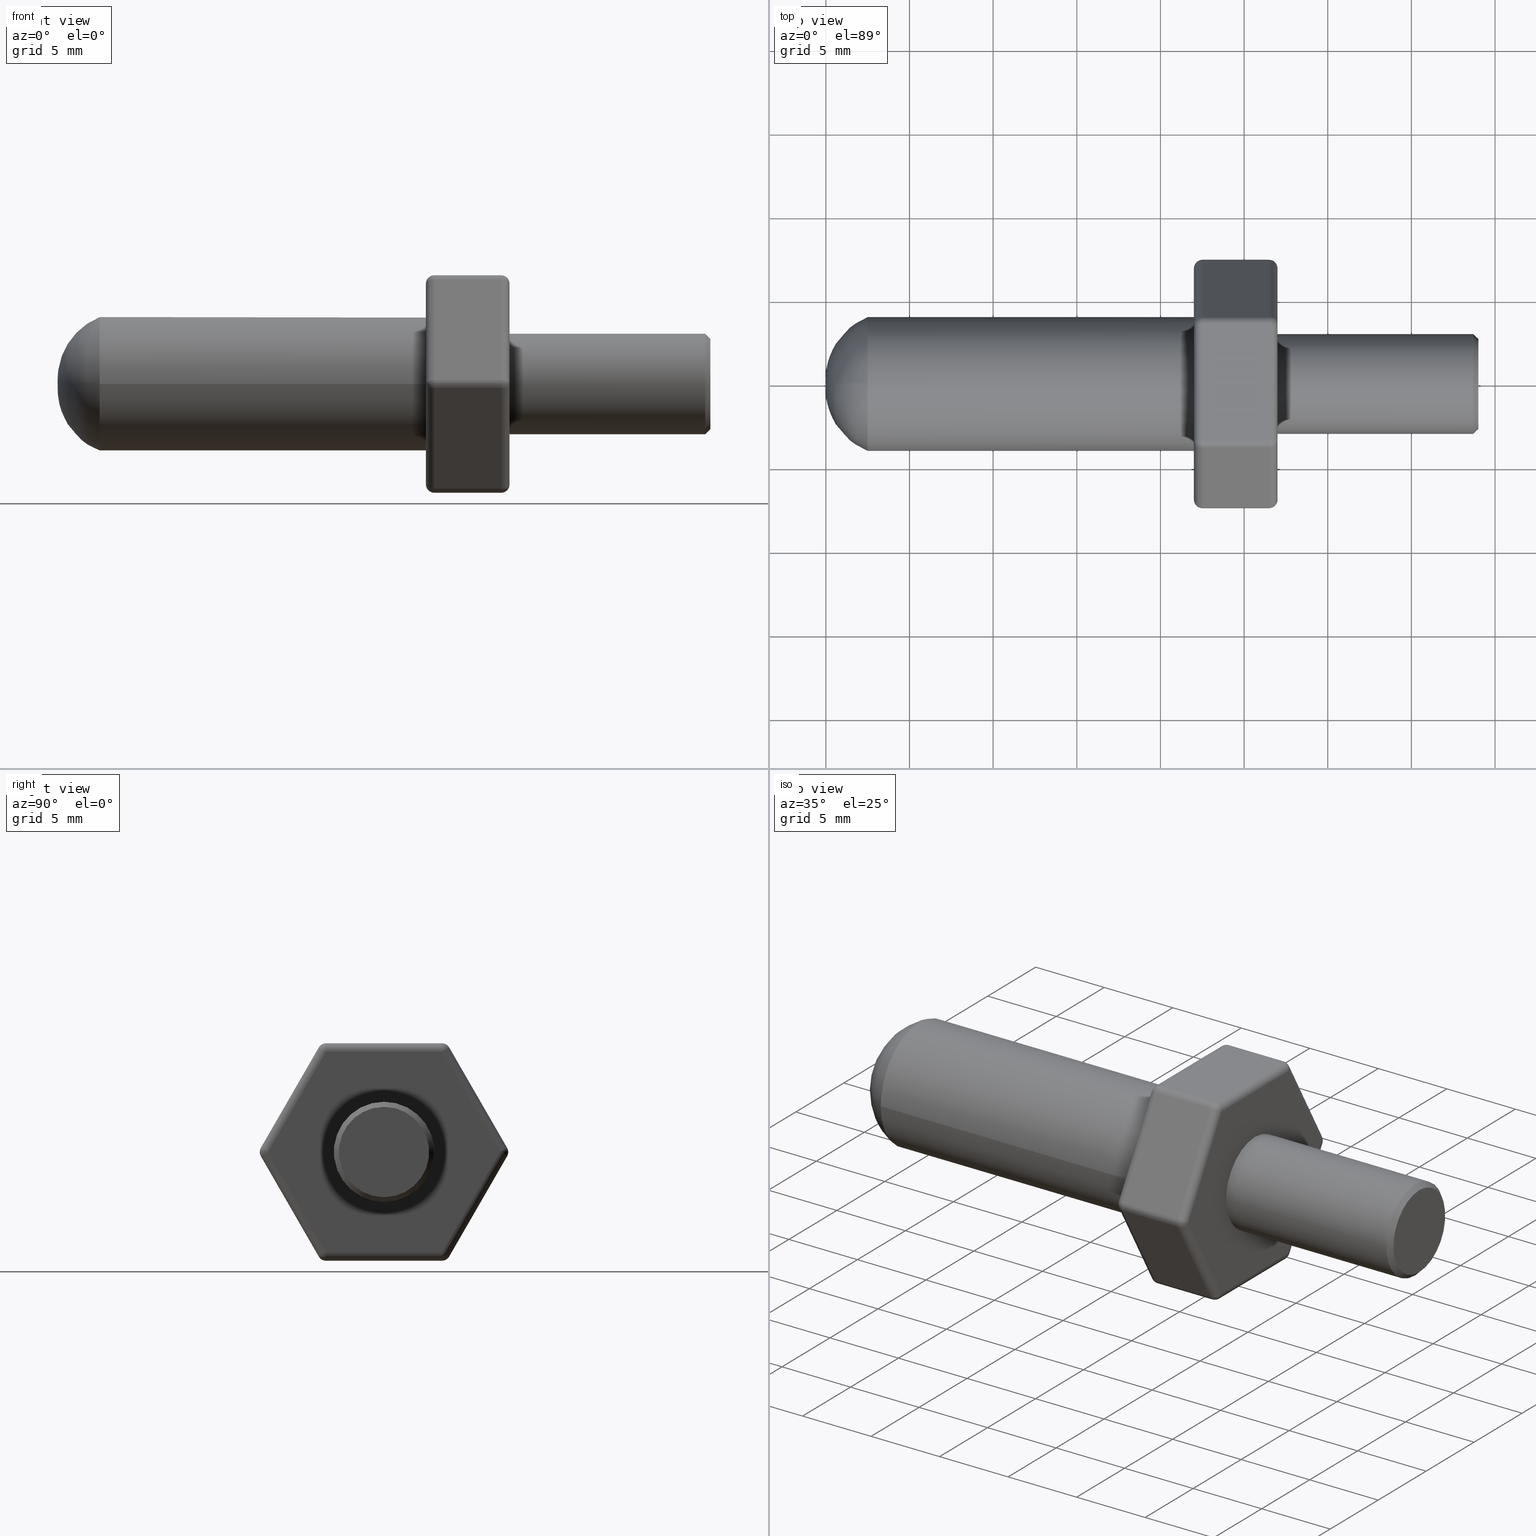
[diagram: canonical four-view strip — front | top / right | iso, engineering-drawing reading convention]
A machine part, canonical four-view strip (front | top / right | iso — engineering-drawing reading convention). The complete STEP part file that produces these views, byte-faithful:
ISO-10303-21;
HEADER;
/* Generated by software containing ST-Developer
 * from STEP Tools, Inc. (www.steptools.com) 
 */

FILE_DESCRIPTION(
/* description */ ('PERNO D7 X M6 BL.PINZ.ESAG.13X39/FE-ZINC'),
/* implementation_level */ '2;1');

FILE_NAME(
/* name */ 
'Q:\\Catalogo\\3_Profili e accessori MACAP\\Per Download Web e catalog
o artaceo\\ACCESSORI\\PAGINA 53\\DPEXX0000038-XT10501.stp',
/* time_stamp */ '2019-12-16T17:56:22+01:00',
/* author */ ('fzagni'),
/* organization */ (''),
/* preprocessor_version */ 'ST-DEVELOPER v17.2',
/* originating_system */ 'Autodesk Inventor 2019',
/* authorisation */ '');

FILE_SCHEMA (('AUTOMOTIVE_DESIGN { 1 0 10303 214 3 1 1 }'));
ENDSEC;

DATA;
#10=MECHANICAL_DESIGN_GEOMETRIC_PRESENTATION_REPRESENTATION('',(#13),#1135);
#11=SHAPE_REPRESENTATION_RELATIONSHIP('SRR','None',#1142,#12);
#12=ADVANCED_BREP_SHAPE_REPRESENTATION('',(#14),#1134);
#13=STYLED_ITEM('',(#1151),#14);
#14=MANIFOLD_SOLID_BREP('Solido1',#611);
#15=(
BOUNDED_SURFACE()
B_SPLINE_SURFACE(2,2,((#1103,#1104,#1105,#1106,#1107,#1108,#1109,#1110,
#1111),(#1112,#1113,#1114,#1115,#1116,#1117,#1118,#1119,#1120),(#1121,#1122,
#1123,#1124,#1125,#1126,#1127,#1128,#1129)),.UNSPECIFIED.,.F.,.T.,.F.)
B_SPLINE_SURFACE_WITH_KNOTS((3,3),(3,2,2,2,3),(-1.64279001901994,-0.381604003882723),
(-3.14159265358979,-1.5707963267949,0.,1.5707963267949,3.14159265358979),
 .UNSPECIFIED.)
GEOMETRIC_REPRESENTATION_ITEM()
RATIONAL_B_SPLINE_SURFACE(((1.,0.707106781186548,1.,0.707106781186548,1.,
0.707106781186548,1.,0.707106781186548,1.),(0.807677998957505,0.571114590078033,
0.807677998957505,0.571114590078033,0.807677998957505,0.571114590078033,
0.807677998957505,0.571114590078033,0.807677998957505),(1.,0.707106781186548,
1.,0.707106781186548,1.,0.707106781186548,1.,0.707106781186548,1.)))
REPRESENTATION_ITEM('')
SURFACE()
);
#16=CONICAL_SURFACE('',#708,2.85,0.785398163397445);
#17=FACE_BOUND('',#200,.T.);
#18=FACE_BOUND('',#208,.T.);
#19=PLANE('',#640);
#20=PLANE('',#653);
#21=PLANE('',#664);
#22=PLANE('',#675);
#23=PLANE('',#686);
#24=PLANE('',#696);
#25=PLANE('',#697);
#26=PLANE('',#705);
#27=PLANE('',#712);
#28=LINE('',#945,#67);
#29=LINE('',#946,#68);
#30=LINE('',#953,#69);
#31=LINE('',#955,#70);
#32=LINE('',#956,#71);
#33=LINE('',#959,#72);
#34=LINE('',#963,#73);
#35=LINE('',#966,#74);
#36=LINE('',#975,#75);
#37=LINE('',#976,#76);
#38=LINE('',#982,#77);
#39=LINE('',#985,#78);
#40=LINE('',#988,#79);
#41=LINE('',#997,#80);
#42=LINE('',#998,#81);
#43=LINE('',#1004,#82);
#44=LINE('',#1007,#83);
#45=LINE('',#1010,#84);
#46=LINE('',#1019,#85);
#47=LINE('',#1020,#86);
#48=LINE('',#1026,#87);
#49=LINE('',#1029,#88);
#50=LINE('',#1032,#89);
#51=LINE('',#1041,#90);
#52=LINE('',#1042,#91);
#53=LINE('',#1048,#92);
#54=LINE('',#1051,#93);
#55=LINE('',#1053,#94);
#56=LINE('',#1059,#95);
#57=LINE('',#1065,#96);
#58=LINE('',#1070,#97);
#59=LINE('',#1072,#98);
#60=LINE('',#1074,#99);
#61=LINE('',#1076,#100);
#62=LINE('',#1078,#101);
#63=LINE('',#1080,#102);
#64=LINE('',#1090,#103);
#65=LINE('',#1093,#104);
#66=LINE('',#1097,#105);
#67=VECTOR('',#732,10.);
#68=VECTOR('',#733,10.);
#69=VECTOR('',#742,10.);
#70=VECTOR('',#743,10.);
#71=VECTOR('',#744,10.);
#72=VECTOR('',#747,10.);
#73=VECTOR('',#752,10.);
#74=VECTOR('',#755,10.);
#75=VECTOR('',#766,10.);
#76=VECTOR('',#767,10.);
#77=VECTOR('',#776,10.);
#78=VECTOR('',#779,10.);
#79=VECTOR('',#782,10.);
#80=VECTOR('',#793,10.);
#81=VECTOR('',#794,10.);
#82=VECTOR('',#803,10.);
#83=VECTOR('',#806,10.);
#84=VECTOR('',#809,10.);
#85=VECTOR('',#820,10.);
#86=VECTOR('',#821,10.);
#87=VECTOR('',#830,10.);
#88=VECTOR('',#833,10.);
#89=VECTOR('',#836,10.);
#90=VECTOR('',#847,10.);
#91=VECTOR('',#848,10.);
#92=VECTOR('',#857,10.);
#93=VECTOR('',#860,10.);
#94=VECTOR('',#863,10.);
#95=VECTOR('',#872,10.);
#96=VECTOR('',#881,10.);
#97=VECTOR('',#888,10.);
#98=VECTOR('',#891,10.);
#99=VECTOR('',#894,10.);
#100=VECTOR('',#897,10.);
#101=VECTOR('',#900,10.);
#102=VECTOR('',#903,10.);
#103=VECTOR('',#914,2.85);
#104=VECTOR('',#919,3.);
#105=VECTOR('',#924,4.);
#106=CYLINDRICAL_SURFACE('',#635,0.5);
#107=CYLINDRICAL_SURFACE('',#641,0.5);
#108=CYLINDRICAL_SURFACE('',#643,0.5);
#109=CYLINDRICAL_SURFACE('',#648,0.5);
#110=CYLINDRICAL_SURFACE('',#654,0.5);
#111=CYLINDRICAL_SURFACE('',#659,0.5);
#112=CYLINDRICAL_SURFACE('',#665,0.5);
#113=CYLINDRICAL_SURFACE('',#670,0.5);
#114=CYLINDRICAL_SURFACE('',#676,0.5);
#115=CYLINDRICAL_SURFACE('',#681,0.5);
#116=CYLINDRICAL_SURFACE('',#687,0.5);
#117=CYLINDRICAL_SURFACE('',#691,0.5);
#118=CYLINDRICAL_SURFACE('',#699,0.5);
#119=CYLINDRICAL_SURFACE('',#700,0.5);
#120=CYLINDRICAL_SURFACE('',#701,0.5);
#121=CYLINDRICAL_SURFACE('',#702,0.5);
#122=CYLINDRICAL_SURFACE('',#703,0.5);
#123=CYLINDRICAL_SURFACE('',#704,0.5);
#124=CYLINDRICAL_SURFACE('',#711,3.);
#125=CYLINDRICAL_SURFACE('',#713,4.);
#126=FACE_OUTER_BOUND('',#169,.T.);
#127=FACE_OUTER_BOUND('',#170,.T.);
#128=FACE_OUTER_BOUND('',#171,.T.);
#129=FACE_OUTER_BOUND('',#172,.T.);
#130=FACE_OUTER_BOUND('',#173,.T.);
#131=FACE_OUTER_BOUND('',#174,.T.);
#132=FACE_OUTER_BOUND('',#175,.T.);
#133=FACE_OUTER_BOUND('',#176,.T.);
#134=FACE_OUTER_BOUND('',#177,.T.);
#135=FACE_OUTER_BOUND('',#178,.T.);
#136=FACE_OUTER_BOUND('',#179,.T.);
#137=FACE_OUTER_BOUND('',#180,.T.);
#138=FACE_OUTER_BOUND('',#181,.T.);
#139=FACE_OUTER_BOUND('',#182,.T.);
#140=FACE_OUTER_BOUND('',#183,.T.);
#141=FACE_OUTER_BOUND('',#184,.T.);
#142=FACE_OUTER_BOUND('',#185,.T.);
#143=FACE_OUTER_BOUND('',#186,.T.);
#144=FACE_OUTER_BOUND('',#187,.T.);
#145=FACE_OUTER_BOUND('',#188,.T.);
#146=FACE_OUTER_BOUND('',#189,.T.);
#147=FACE_OUTER_BOUND('',#190,.T.);
#148=FACE_OUTER_BOUND('',#191,.T.);
#149=FACE_OUTER_BOUND('',#192,.T.);
#150=FACE_OUTER_BOUND('',#193,.T.);
#151=FACE_OUTER_BOUND('',#194,.T.);
#152=FACE_OUTER_BOUND('',#195,.T.);
#153=FACE_OUTER_BOUND('',#196,.T.);
#154=FACE_OUTER_BOUND('',#197,.T.);
#155=FACE_OUTER_BOUND('',#198,.T.);
#156=FACE_OUTER_BOUND('',#199,.T.);
#157=FACE_OUTER_BOUND('',#201,.T.);
#158=FACE_OUTER_BOUND('',#202,.T.);
#159=FACE_OUTER_BOUND('',#203,.T.);
#160=FACE_OUTER_BOUND('',#204,.T.);
#161=FACE_OUTER_BOUND('',#205,.T.);
#162=FACE_OUTER_BOUND('',#206,.T.);
#163=FACE_OUTER_BOUND('',#207,.T.);
#164=FACE_OUTER_BOUND('',#209,.T.);
#165=FACE_OUTER_BOUND('',#210,.T.);
#166=FACE_OUTER_BOUND('',#211,.T.);
#167=FACE_OUTER_BOUND('',#212,.T.);
#168=FACE_OUTER_BOUND('',#213,.T.);
#169=EDGE_LOOP('',(#388,#389,#390));
#170=EDGE_LOOP('',(#391,#392,#393,#394));
#171=EDGE_LOOP('',(#395,#396,#397));
#172=EDGE_LOOP('',(#398,#399,#400,#401));
#173=EDGE_LOOP('',(#402,#403,#404,#405));
#174=EDGE_LOOP('',(#406,#407,#408,#409));
#175=EDGE_LOOP('',(#410,#411,#412));
#176=EDGE_LOOP('',(#413,#414,#415,#416));
#177=EDGE_LOOP('',(#417,#418,#419));
#178=EDGE_LOOP('',(#420,#421,#422,#423));
#179=EDGE_LOOP('',(#424,#425,#426,#427));
#180=EDGE_LOOP('',(#428,#429,#430));
#181=EDGE_LOOP('',(#431,#432,#433,#434));
#182=EDGE_LOOP('',(#435,#436,#437));
#183=EDGE_LOOP('',(#438,#439,#440,#441));
#184=EDGE_LOOP('',(#442,#443,#444,#445));
#185=EDGE_LOOP('',(#446,#447,#448));
#186=EDGE_LOOP('',(#449,#450,#451,#452));
#187=EDGE_LOOP('',(#453,#454,#455));
#188=EDGE_LOOP('',(#456,#457,#458,#459));
#189=EDGE_LOOP('',(#460,#461,#462,#463));
#190=EDGE_LOOP('',(#464,#465,#466));
#191=EDGE_LOOP('',(#467,#468,#469,#470));
#192=EDGE_LOOP('',(#471,#472,#473));
#193=EDGE_LOOP('',(#474,#475,#476,#477));
#194=EDGE_LOOP('',(#478,#479,#480,#481));
#195=EDGE_LOOP('',(#482,#483,#484));
#196=EDGE_LOOP('',(#485,#486,#487,#488));
#197=EDGE_LOOP('',(#489,#490,#491));
#198=EDGE_LOOP('',(#492,#493,#494,#495));
#199=EDGE_LOOP('',(#496,#497,#498,#499,#500,#501));
#200=EDGE_LOOP('',(#502));
#201=EDGE_LOOP('',(#503,#504,#505,#506));
#202=EDGE_LOOP('',(#507,#508,#509,#510));
#203=EDGE_LOOP('',(#511,#512,#513,#514));
#204=EDGE_LOOP('',(#515,#516,#517,#518));
#205=EDGE_LOOP('',(#519,#520,#521,#522));
#206=EDGE_LOOP('',(#523,#524,#525,#526));
#207=EDGE_LOOP('',(#527,#528,#529,#530,#531,#532));
#208=EDGE_LOOP('',(#533,#534));
#209=EDGE_LOOP('',(#535,#536,#537,#538));
#210=EDGE_LOOP('',(#539,#540,#541,#542));
#211=EDGE_LOOP('',(#543));
#212=EDGE_LOOP('',(#544,#545,#546,#547,#548,#549,#550));
#213=EDGE_LOOP('',(#551,#552,#553,#554,#555));
#214=CIRCLE('',#632,0.499999999999999);
#215=CIRCLE('',#633,0.5);
#216=CIRCLE('',#634,0.5);
#217=CIRCLE('',#636,0.5);
#218=CIRCLE('',#638,0.5);
#219=CIRCLE('',#639,0.5);
#220=CIRCLE('',#642,0.5);
#221=CIRCLE('',#644,0.5);
#222=CIRCLE('',#646,0.5);
#223=CIRCLE('',#647,0.5);
#224=CIRCLE('',#649,0.5);
#225=CIRCLE('',#651,0.5);
#226=CIRCLE('',#652,0.5);
#227=CIRCLE('',#655,0.5);
#228=CIRCLE('',#657,0.5);
#229=CIRCLE('',#658,0.5);
#230=CIRCLE('',#660,0.500000000000002);
#231=CIRCLE('',#662,0.5);
#232=CIRCLE('',#663,0.5);
#233=CIRCLE('',#666,0.499999999999999);
#234=CIRCLE('',#668,0.5);
#235=CIRCLE('',#669,0.5);
#236=CIRCLE('',#671,0.5);
#237=CIRCLE('',#673,0.499999999999999);
#238=CIRCLE('',#674,0.5);
#239=CIRCLE('',#677,0.5);
#240=CIRCLE('',#679,0.5);
#241=CIRCLE('',#680,0.5);
#242=CIRCLE('',#682,0.5);
#243=CIRCLE('',#684,0.5);
#244=CIRCLE('',#685,0.5);
#245=CIRCLE('',#688,0.5);
#246=CIRCLE('',#690,0.499999999999999);
#247=CIRCLE('',#692,0.500000000000002);
#248=CIRCLE('',#694,0.5);
#249=CIRCLE('',#695,0.5);
#250=CIRCLE('',#698,3.);
#251=CIRCLE('',#706,4.);
#252=CIRCLE('',#707,4.);
#253=CIRCLE('',#709,2.7);
#254=CIRCLE('',#710,3.);
#255=CIRCLE('',#714,3.99999999999999);
#256=CIRCLE('',#715,3.99999999999999);
#257=CIRCLE('',#716,3.99999999999999);
#258=CIRCLE('',#717,4.);
#259=VERTEX_POINT('',#935);
#260=VERTEX_POINT('',#936);
#261=VERTEX_POINT('',#938);
#262=VERTEX_POINT('',#942);
#263=VERTEX_POINT('',#943);
#264=VERTEX_POINT('',#948);
#265=VERTEX_POINT('',#952);
#266=VERTEX_POINT('',#954);
#267=VERTEX_POINT('',#958);
#268=VERTEX_POINT('',#962);
#269=VERTEX_POINT('',#964);
#270=VERTEX_POINT('',#968);
#271=VERTEX_POINT('',#972);
#272=VERTEX_POINT('',#973);
#273=VERTEX_POINT('',#978);
#274=VERTEX_POINT('',#984);
#275=VERTEX_POINT('',#986);
#276=VERTEX_POINT('',#990);
#277=VERTEX_POINT('',#994);
#278=VERTEX_POINT('',#995);
#279=VERTEX_POINT('',#1000);
#280=VERTEX_POINT('',#1006);
#281=VERTEX_POINT('',#1008);
#282=VERTEX_POINT('',#1012);
#283=VERTEX_POINT('',#1016);
#284=VERTEX_POINT('',#1017);
#285=VERTEX_POINT('',#1022);
#286=VERTEX_POINT('',#1028);
#287=VERTEX_POINT('',#1030);
#288=VERTEX_POINT('',#1034);
#289=VERTEX_POINT('',#1038);
#290=VERTEX_POINT('',#1039);
#291=VERTEX_POINT('',#1044);
#292=VERTEX_POINT('',#1050);
#293=VERTEX_POINT('',#1057);
#294=VERTEX_POINT('',#1061);
#295=VERTEX_POINT('',#1067);
#296=VERTEX_POINT('',#1082);
#297=VERTEX_POINT('',#1083);
#298=VERTEX_POINT('',#1087);
#299=VERTEX_POINT('',#1089);
#300=VERTEX_POINT('',#1096);
#301=VERTEX_POINT('',#1098);
#302=VERTEX_POINT('',#1100);
#303=VERTEX_POINT('',#1130);
#304=EDGE_CURVE('',#259,#260,#214,.T.);
#305=EDGE_CURVE('',#260,#261,#215,.T.);
#306=EDGE_CURVE('',#261,#259,#216,.T.);
#307=EDGE_CURVE('',#262,#263,#217,.T.);
#308=EDGE_CURVE('',#263,#260,#28,.T.);
#309=EDGE_CURVE('',#259,#262,#29,.T.);
#310=EDGE_CURVE('',#262,#264,#218,.T.);
#311=EDGE_CURVE('',#264,#263,#219,.T.);
#312=EDGE_CURVE('',#265,#259,#30,.T.);
#313=EDGE_CURVE('',#266,#265,#31,.T.);
#314=EDGE_CURVE('',#262,#266,#32,.T.);
#315=EDGE_CURVE('',#261,#267,#33,.T.);
#316=EDGE_CURVE('',#265,#267,#220,.T.);
#317=EDGE_CURVE('',#260,#268,#34,.T.);
#318=EDGE_CURVE('',#269,#268,#221,.T.);
#319=EDGE_CURVE('',#269,#261,#35,.T.);
#320=EDGE_CURVE('',#268,#270,#222,.T.);
#321=EDGE_CURVE('',#270,#269,#223,.T.);
#322=EDGE_CURVE('',#271,#272,#224,.T.);
#323=EDGE_CURVE('',#272,#270,#36,.T.);
#324=EDGE_CURVE('',#268,#271,#37,.T.);
#325=EDGE_CURVE('',#271,#273,#225,.T.);
#326=EDGE_CURVE('',#273,#272,#226,.T.);
#327=EDGE_CURVE('',#271,#263,#38,.T.);
#328=EDGE_CURVE('',#270,#274,#39,.T.);
#329=EDGE_CURVE('',#275,#274,#227,.T.);
#330=EDGE_CURVE('',#275,#269,#40,.T.);
#331=EDGE_CURVE('',#274,#276,#228,.T.);
#332=EDGE_CURVE('',#276,#275,#229,.T.);
#333=EDGE_CURVE('',#277,#278,#230,.T.);
#334=EDGE_CURVE('',#278,#276,#41,.T.);
#335=EDGE_CURVE('',#274,#277,#42,.T.);
#336=EDGE_CURVE('',#277,#279,#231,.T.);
#337=EDGE_CURVE('',#279,#278,#232,.T.);
#338=EDGE_CURVE('',#277,#272,#43,.T.);
#339=EDGE_CURVE('',#276,#280,#44,.T.);
#340=EDGE_CURVE('',#281,#280,#233,.T.);
#341=EDGE_CURVE('',#281,#275,#45,.T.);
#342=EDGE_CURVE('',#280,#282,#234,.T.);
#343=EDGE_CURVE('',#282,#281,#235,.T.);
#344=EDGE_CURVE('',#283,#284,#236,.T.);
#345=EDGE_CURVE('',#284,#282,#46,.T.);
#346=EDGE_CURVE('',#280,#283,#47,.T.);
#347=EDGE_CURVE('',#283,#285,#237,.T.);
#348=EDGE_CURVE('',#285,#284,#238,.T.);
#349=EDGE_CURVE('',#283,#278,#48,.T.);
#350=EDGE_CURVE('',#282,#286,#49,.T.);
#351=EDGE_CURVE('',#287,#286,#239,.T.);
#352=EDGE_CURVE('',#287,#281,#50,.T.);
#353=EDGE_CURVE('',#286,#288,#240,.T.);
#354=EDGE_CURVE('',#288,#287,#241,.T.);
#355=EDGE_CURVE('',#289,#290,#242,.T.);
#356=EDGE_CURVE('',#290,#288,#51,.T.);
#357=EDGE_CURVE('',#286,#289,#52,.T.);
#358=EDGE_CURVE('',#289,#291,#243,.T.);
#359=EDGE_CURVE('',#291,#290,#244,.T.);
#360=EDGE_CURVE('',#289,#284,#53,.T.);
#361=EDGE_CURVE('',#288,#292,#54,.T.);
#362=EDGE_CURVE('',#267,#292,#245,.T.);
#363=EDGE_CURVE('',#267,#287,#55,.T.);
#364=EDGE_CURVE('',#292,#265,#246,.T.);
#365=EDGE_CURVE('',#293,#266,#247,.T.);
#366=EDGE_CURVE('',#292,#293,#56,.T.);
#367=EDGE_CURVE('',#293,#294,#248,.T.);
#368=EDGE_CURVE('',#294,#266,#249,.T.);
#369=EDGE_CURVE('',#293,#290,#57,.T.);
#370=EDGE_CURVE('',#295,#295,#250,.T.);
#371=EDGE_CURVE('',#294,#264,#58,.T.);
#372=EDGE_CURVE('',#285,#291,#59,.T.);
#373=EDGE_CURVE('',#279,#285,#60,.T.);
#374=EDGE_CURVE('',#273,#279,#61,.T.);
#375=EDGE_CURVE('',#264,#273,#62,.T.);
#376=EDGE_CURVE('',#291,#294,#63,.T.);
#377=EDGE_CURVE('',#296,#297,#251,.T.);
#378=EDGE_CURVE('',#297,#296,#252,.T.);
#379=EDGE_CURVE('',#298,#298,#253,.T.);
#380=EDGE_CURVE('',#298,#299,#64,.T.);
#381=EDGE_CURVE('',#299,#299,#254,.T.);
#382=EDGE_CURVE('',#299,#295,#65,.T.);
#383=EDGE_CURVE('',#297,#300,#66,.T.);
#384=EDGE_CURVE('',#300,#301,#255,.T.);
#385=EDGE_CURVE('',#301,#302,#256,.T.);
#386=EDGE_CURVE('',#302,#300,#257,.T.);
#387=EDGE_CURVE('',#302,#303,#258,.T.);
#388=ORIENTED_EDGE('',*,*,#304,.T.);
#389=ORIENTED_EDGE('',*,*,#305,.T.);
#390=ORIENTED_EDGE('',*,*,#306,.T.);
#391=ORIENTED_EDGE('',*,*,#307,.T.);
#392=ORIENTED_EDGE('',*,*,#308,.T.);
#393=ORIENTED_EDGE('',*,*,#304,.F.);
#394=ORIENTED_EDGE('',*,*,#309,.T.);
#395=ORIENTED_EDGE('',*,*,#307,.F.);
#396=ORIENTED_EDGE('',*,*,#310,.T.);
#397=ORIENTED_EDGE('',*,*,#311,.T.);
#398=ORIENTED_EDGE('',*,*,#309,.F.);
#399=ORIENTED_EDGE('',*,*,#312,.F.);
#400=ORIENTED_EDGE('',*,*,#313,.F.);
#401=ORIENTED_EDGE('',*,*,#314,.F.);
#402=ORIENTED_EDGE('',*,*,#306,.F.);
#403=ORIENTED_EDGE('',*,*,#315,.T.);
#404=ORIENTED_EDGE('',*,*,#316,.F.);
#405=ORIENTED_EDGE('',*,*,#312,.T.);
#406=ORIENTED_EDGE('',*,*,#305,.F.);
#407=ORIENTED_EDGE('',*,*,#317,.T.);
#408=ORIENTED_EDGE('',*,*,#318,.F.);
#409=ORIENTED_EDGE('',*,*,#319,.T.);
#410=ORIENTED_EDGE('',*,*,#320,.T.);
#411=ORIENTED_EDGE('',*,*,#321,.T.);
#412=ORIENTED_EDGE('',*,*,#318,.T.);
#413=ORIENTED_EDGE('',*,*,#322,.T.);
#414=ORIENTED_EDGE('',*,*,#323,.T.);
#415=ORIENTED_EDGE('',*,*,#320,.F.);
#416=ORIENTED_EDGE('',*,*,#324,.T.);
#417=ORIENTED_EDGE('',*,*,#322,.F.);
#418=ORIENTED_EDGE('',*,*,#325,.T.);
#419=ORIENTED_EDGE('',*,*,#326,.T.);
#420=ORIENTED_EDGE('',*,*,#308,.F.);
#421=ORIENTED_EDGE('',*,*,#327,.F.);
#422=ORIENTED_EDGE('',*,*,#324,.F.);
#423=ORIENTED_EDGE('',*,*,#317,.F.);
#424=ORIENTED_EDGE('',*,*,#321,.F.);
#425=ORIENTED_EDGE('',*,*,#328,.T.);
#426=ORIENTED_EDGE('',*,*,#329,.F.);
#427=ORIENTED_EDGE('',*,*,#330,.T.);
#428=ORIENTED_EDGE('',*,*,#331,.T.);
#429=ORIENTED_EDGE('',*,*,#332,.T.);
#430=ORIENTED_EDGE('',*,*,#329,.T.);
#431=ORIENTED_EDGE('',*,*,#333,.T.);
#432=ORIENTED_EDGE('',*,*,#334,.T.);
#433=ORIENTED_EDGE('',*,*,#331,.F.);
#434=ORIENTED_EDGE('',*,*,#335,.T.);
#435=ORIENTED_EDGE('',*,*,#333,.F.);
#436=ORIENTED_EDGE('',*,*,#336,.T.);
#437=ORIENTED_EDGE('',*,*,#337,.T.);
#438=ORIENTED_EDGE('',*,*,#323,.F.);
#439=ORIENTED_EDGE('',*,*,#338,.F.);
#440=ORIENTED_EDGE('',*,*,#335,.F.);
#441=ORIENTED_EDGE('',*,*,#328,.F.);
#442=ORIENTED_EDGE('',*,*,#332,.F.);
#443=ORIENTED_EDGE('',*,*,#339,.T.);
#444=ORIENTED_EDGE('',*,*,#340,.F.);
#445=ORIENTED_EDGE('',*,*,#341,.T.);
#446=ORIENTED_EDGE('',*,*,#342,.T.);
#447=ORIENTED_EDGE('',*,*,#343,.T.);
#448=ORIENTED_EDGE('',*,*,#340,.T.);
#449=ORIENTED_EDGE('',*,*,#344,.T.);
#450=ORIENTED_EDGE('',*,*,#345,.T.);
#451=ORIENTED_EDGE('',*,*,#342,.F.);
#452=ORIENTED_EDGE('',*,*,#346,.T.);
#453=ORIENTED_EDGE('',*,*,#344,.F.);
#454=ORIENTED_EDGE('',*,*,#347,.T.);
#455=ORIENTED_EDGE('',*,*,#348,.T.);
#456=ORIENTED_EDGE('',*,*,#334,.F.);
#457=ORIENTED_EDGE('',*,*,#349,.F.);
#458=ORIENTED_EDGE('',*,*,#346,.F.);
#459=ORIENTED_EDGE('',*,*,#339,.F.);
#460=ORIENTED_EDGE('',*,*,#343,.F.);
#461=ORIENTED_EDGE('',*,*,#350,.T.);
#462=ORIENTED_EDGE('',*,*,#351,.F.);
#463=ORIENTED_EDGE('',*,*,#352,.T.);
#464=ORIENTED_EDGE('',*,*,#353,.T.);
#465=ORIENTED_EDGE('',*,*,#354,.T.);
#466=ORIENTED_EDGE('',*,*,#351,.T.);
#467=ORIENTED_EDGE('',*,*,#355,.T.);
#468=ORIENTED_EDGE('',*,*,#356,.T.);
#469=ORIENTED_EDGE('',*,*,#353,.F.);
#470=ORIENTED_EDGE('',*,*,#357,.T.);
#471=ORIENTED_EDGE('',*,*,#355,.F.);
#472=ORIENTED_EDGE('',*,*,#358,.T.);
#473=ORIENTED_EDGE('',*,*,#359,.T.);
#474=ORIENTED_EDGE('',*,*,#345,.F.);
#475=ORIENTED_EDGE('',*,*,#360,.F.);
#476=ORIENTED_EDGE('',*,*,#357,.F.);
#477=ORIENTED_EDGE('',*,*,#350,.F.);
#478=ORIENTED_EDGE('',*,*,#354,.F.);
#479=ORIENTED_EDGE('',*,*,#361,.T.);
#480=ORIENTED_EDGE('',*,*,#362,.F.);
#481=ORIENTED_EDGE('',*,*,#363,.T.);
#482=ORIENTED_EDGE('',*,*,#364,.T.);
#483=ORIENTED_EDGE('',*,*,#316,.T.);
#484=ORIENTED_EDGE('',*,*,#362,.T.);
#485=ORIENTED_EDGE('',*,*,#365,.T.);
#486=ORIENTED_EDGE('',*,*,#313,.T.);
#487=ORIENTED_EDGE('',*,*,#364,.F.);
#488=ORIENTED_EDGE('',*,*,#366,.T.);
#489=ORIENTED_EDGE('',*,*,#365,.F.);
#490=ORIENTED_EDGE('',*,*,#367,.T.);
#491=ORIENTED_EDGE('',*,*,#368,.T.);
#492=ORIENTED_EDGE('',*,*,#356,.F.);
#493=ORIENTED_EDGE('',*,*,#369,.F.);
#494=ORIENTED_EDGE('',*,*,#366,.F.);
#495=ORIENTED_EDGE('',*,*,#361,.F.);
#496=ORIENTED_EDGE('',*,*,#330,.F.);
#497=ORIENTED_EDGE('',*,*,#341,.F.);
#498=ORIENTED_EDGE('',*,*,#352,.F.);
#499=ORIENTED_EDGE('',*,*,#363,.F.);
#500=ORIENTED_EDGE('',*,*,#315,.F.);
#501=ORIENTED_EDGE('',*,*,#319,.F.);
#502=ORIENTED_EDGE('',*,*,#370,.T.);
#503=ORIENTED_EDGE('',*,*,#310,.F.);
#504=ORIENTED_EDGE('',*,*,#314,.T.);
#505=ORIENTED_EDGE('',*,*,#368,.F.);
#506=ORIENTED_EDGE('',*,*,#371,.T.);
#507=ORIENTED_EDGE('',*,*,#348,.F.);
#508=ORIENTED_EDGE('',*,*,#372,.T.);
#509=ORIENTED_EDGE('',*,*,#358,.F.);
#510=ORIENTED_EDGE('',*,*,#360,.T.);
#511=ORIENTED_EDGE('',*,*,#337,.F.);
#512=ORIENTED_EDGE('',*,*,#373,.T.);
#513=ORIENTED_EDGE('',*,*,#347,.F.);
#514=ORIENTED_EDGE('',*,*,#349,.T.);
#515=ORIENTED_EDGE('',*,*,#326,.F.);
#516=ORIENTED_EDGE('',*,*,#374,.T.);
#517=ORIENTED_EDGE('',*,*,#336,.F.);
#518=ORIENTED_EDGE('',*,*,#338,.T.);
#519=ORIENTED_EDGE('',*,*,#311,.F.);
#520=ORIENTED_EDGE('',*,*,#375,.T.);
#521=ORIENTED_EDGE('',*,*,#325,.F.);
#522=ORIENTED_EDGE('',*,*,#327,.T.);
#523=ORIENTED_EDGE('',*,*,#359,.F.);
#524=ORIENTED_EDGE('',*,*,#376,.T.);
#525=ORIENTED_EDGE('',*,*,#367,.F.);
#526=ORIENTED_EDGE('',*,*,#369,.T.);
#527=ORIENTED_EDGE('',*,*,#372,.F.);
#528=ORIENTED_EDGE('',*,*,#373,.F.);
#529=ORIENTED_EDGE('',*,*,#374,.F.);
#530=ORIENTED_EDGE('',*,*,#375,.F.);
#531=ORIENTED_EDGE('',*,*,#371,.F.);
#532=ORIENTED_EDGE('',*,*,#376,.F.);
#533=ORIENTED_EDGE('',*,*,#377,.T.);
#534=ORIENTED_EDGE('',*,*,#378,.T.);
#535=ORIENTED_EDGE('',*,*,#379,.T.);
#536=ORIENTED_EDGE('',*,*,#380,.T.);
#537=ORIENTED_EDGE('',*,*,#381,.T.);
#538=ORIENTED_EDGE('',*,*,#380,.F.);
#539=ORIENTED_EDGE('',*,*,#381,.F.);
#540=ORIENTED_EDGE('',*,*,#382,.T.);
#541=ORIENTED_EDGE('',*,*,#370,.F.);
#542=ORIENTED_EDGE('',*,*,#382,.F.);
#543=ORIENTED_EDGE('',*,*,#379,.F.);
#544=ORIENTED_EDGE('',*,*,#377,.F.);
#545=ORIENTED_EDGE('',*,*,#378,.F.);
#546=ORIENTED_EDGE('',*,*,#383,.T.);
#547=ORIENTED_EDGE('',*,*,#384,.T.);
#548=ORIENTED_EDGE('',*,*,#385,.T.);
#549=ORIENTED_EDGE('',*,*,#386,.T.);
#550=ORIENTED_EDGE('',*,*,#383,.F.);
#551=ORIENTED_EDGE('',*,*,#385,.F.);
#552=ORIENTED_EDGE('',*,*,#384,.F.);
#553=ORIENTED_EDGE('',*,*,#386,.F.);
#554=ORIENTED_EDGE('',*,*,#387,.T.);
#555=ORIENTED_EDGE('',*,*,#387,.F.);
#556=SPHERICAL_SURFACE('',#631,0.5);
#557=SPHERICAL_SURFACE('',#637,0.5);
#558=SPHERICAL_SURFACE('',#645,0.5);
#559=SPHERICAL_SURFACE('',#650,0.5);
#560=SPHERICAL_SURFACE('',#656,0.5);
#561=SPHERICAL_SURFACE('',#661,0.5);
#562=SPHERICAL_SURFACE('',#667,0.5);
#563=SPHERICAL_SURFACE('',#672,0.5);
#564=SPHERICAL_SURFACE('',#678,0.5);
#565=SPHERICAL_SURFACE('',#683,0.5);
#566=SPHERICAL_SURFACE('',#689,0.5);
#567=SPHERICAL_SURFACE('',#693,0.5);
#568=ADVANCED_FACE('',(#126),#556,.T.);
#569=ADVANCED_FACE('',(#127),#106,.T.);
#570=ADVANCED_FACE('',(#128),#557,.T.);
#571=ADVANCED_FACE('',(#129),#19,.T.);
#572=ADVANCED_FACE('',(#130),#107,.T.);
#573=ADVANCED_FACE('',(#131),#108,.T.);
#574=ADVANCED_FACE('',(#132),#558,.T.);
#575=ADVANCED_FACE('',(#133),#109,.T.);
#576=ADVANCED_FACE('',(#134),#559,.T.);
#577=ADVANCED_FACE('',(#135),#20,.T.);
#578=ADVANCED_FACE('',(#136),#110,.T.);
#579=ADVANCED_FACE('',(#137),#560,.T.);
#580=ADVANCED_FACE('',(#138),#111,.T.);
#581=ADVANCED_FACE('',(#139),#561,.T.);
#582=ADVANCED_FACE('',(#140),#21,.T.);
#583=ADVANCED_FACE('',(#141),#112,.T.);
#584=ADVANCED_FACE('',(#142),#562,.T.);
#585=ADVANCED_FACE('',(#143),#113,.T.);
#586=ADVANCED_FACE('',(#144),#563,.T.);
#587=ADVANCED_FACE('',(#145),#22,.T.);
#588=ADVANCED_FACE('',(#146),#114,.T.);
#589=ADVANCED_FACE('',(#147),#564,.T.);
#590=ADVANCED_FACE('',(#148),#115,.T.);
#591=ADVANCED_FACE('',(#149),#565,.T.);
#592=ADVANCED_FACE('',(#150),#23,.T.);
#593=ADVANCED_FACE('',(#151),#116,.T.);
#594=ADVANCED_FACE('',(#152),#566,.T.);
#595=ADVANCED_FACE('',(#153),#117,.T.);
#596=ADVANCED_FACE('',(#154),#567,.T.);
#597=ADVANCED_FACE('',(#155),#24,.T.);
#598=ADVANCED_FACE('',(#156,#17),#25,.T.);
#599=ADVANCED_FACE('',(#157),#118,.T.);
#600=ADVANCED_FACE('',(#158),#119,.T.);
#601=ADVANCED_FACE('',(#159),#120,.T.);
#602=ADVANCED_FACE('',(#160),#121,.T.);
#603=ADVANCED_FACE('',(#161),#122,.T.);
#604=ADVANCED_FACE('',(#162),#123,.T.);
#605=ADVANCED_FACE('',(#163,#18),#26,.F.);
#606=ADVANCED_FACE('',(#164),#16,.T.);
#607=ADVANCED_FACE('',(#165),#124,.T.);
#608=ADVANCED_FACE('',(#166),#27,.T.);
#609=ADVANCED_FACE('',(#167),#125,.T.);
#610=ADVANCED_FACE('',(#168),#15,.F.);
#611=CLOSED_SHELL('',(#568,#569,#570,#571,#572,#573,#574,#575,#576,#577,
#578,#579,#580,#581,#582,#583,#584,#585,#586,#587,#588,#589,#590,#591,#592,
#593,#594,#595,#596,#597,#598,#599,#600,#601,#602,#603,#604,#605,#606,#607,
#608,#609,#610));
#612=DERIVED_UNIT_ELEMENT(#614,1.);
#613=DERIVED_UNIT_ELEMENT(#1137,3.);
#614=(
MASS_UNIT()
NAMED_UNIT(*)
SI_UNIT($,.GRAM.)
);
#615=DERIVED_UNIT((#612,#613));
#616=MEASURE_REPRESENTATION_ITEM('density measure',
POSITIVE_RATIO_MEASURE(7.85),#615);
#617=PROPERTY_DEFINITION_REPRESENTATION(#622,#619);
#618=PROPERTY_DEFINITION_REPRESENTATION(#623,#620);
#619=REPRESENTATION('material name',(#621),#1134);
#620=REPRESENTATION('density',(#616),#1134);
#621=DESCRIPTIVE_REPRESENTATION_ITEM('Acciaio S355JR','Acciaio S355JR');
#622=PROPERTY_DEFINITION('material property','material name',#1144);
#623=PROPERTY_DEFINITION('material property','density of part',#1144);
#624=DATE_TIME_ROLE('creation_date');
#625=APPLIED_DATE_AND_TIME_ASSIGNMENT(#626,#624,(#1144));
#626=DATE_AND_TIME(#627,#628);
#627=CALENDAR_DATE(2012,28,10);
#628=LOCAL_TIME(23,0,0.,#629);
#629=COORDINATED_UNIVERSAL_TIME_OFFSET(0,0,.BEHIND.);
#630=AXIS2_PLACEMENT_3D('placement',#933,#718,#719);
#631=AXIS2_PLACEMENT_3D('',#934,#720,#721);
#632=AXIS2_PLACEMENT_3D('',#937,#722,#723);
#633=AXIS2_PLACEMENT_3D('',#939,#724,#725);
#634=AXIS2_PLACEMENT_3D('',#940,#726,#727);
#635=AXIS2_PLACEMENT_3D('',#941,#728,#729);
#636=AXIS2_PLACEMENT_3D('',#944,#730,#731);
#637=AXIS2_PLACEMENT_3D('',#947,#734,#735);
#638=AXIS2_PLACEMENT_3D('',#949,#736,#737);
#639=AXIS2_PLACEMENT_3D('',#950,#738,#739);
#640=AXIS2_PLACEMENT_3D('',#951,#740,#741);
#641=AXIS2_PLACEMENT_3D('',#957,#745,#746);
#642=AXIS2_PLACEMENT_3D('',#960,#748,#749);
#643=AXIS2_PLACEMENT_3D('',#961,#750,#751);
#644=AXIS2_PLACEMENT_3D('',#965,#753,#754);
#645=AXIS2_PLACEMENT_3D('',#967,#756,#757);
#646=AXIS2_PLACEMENT_3D('',#969,#758,#759);
#647=AXIS2_PLACEMENT_3D('',#970,#760,#761);
#648=AXIS2_PLACEMENT_3D('',#971,#762,#763);
#649=AXIS2_PLACEMENT_3D('',#974,#764,#765);
#650=AXIS2_PLACEMENT_3D('',#977,#768,#769);
#651=AXIS2_PLACEMENT_3D('',#979,#770,#771);
#652=AXIS2_PLACEMENT_3D('',#980,#772,#773);
#653=AXIS2_PLACEMENT_3D('',#981,#774,#775);
#654=AXIS2_PLACEMENT_3D('',#983,#777,#778);
#655=AXIS2_PLACEMENT_3D('',#987,#780,#781);
#656=AXIS2_PLACEMENT_3D('',#989,#783,#784);
#657=AXIS2_PLACEMENT_3D('',#991,#785,#786);
#658=AXIS2_PLACEMENT_3D('',#992,#787,#788);
#659=AXIS2_PLACEMENT_3D('',#993,#789,#790);
#660=AXIS2_PLACEMENT_3D('',#996,#791,#792);
#661=AXIS2_PLACEMENT_3D('',#999,#795,#796);
#662=AXIS2_PLACEMENT_3D('',#1001,#797,#798);
#663=AXIS2_PLACEMENT_3D('',#1002,#799,#800);
#664=AXIS2_PLACEMENT_3D('',#1003,#801,#802);
#665=AXIS2_PLACEMENT_3D('',#1005,#804,#805);
#666=AXIS2_PLACEMENT_3D('',#1009,#807,#808);
#667=AXIS2_PLACEMENT_3D('',#1011,#810,#811);
#668=AXIS2_PLACEMENT_3D('',#1013,#812,#813);
#669=AXIS2_PLACEMENT_3D('',#1014,#814,#815);
#670=AXIS2_PLACEMENT_3D('',#1015,#816,#817);
#671=AXIS2_PLACEMENT_3D('',#1018,#818,#819);
#672=AXIS2_PLACEMENT_3D('',#1021,#822,#823);
#673=AXIS2_PLACEMENT_3D('',#1023,#824,#825);
#674=AXIS2_PLACEMENT_3D('',#1024,#826,#827);
#675=AXIS2_PLACEMENT_3D('',#1025,#828,#829);
#676=AXIS2_PLACEMENT_3D('',#1027,#831,#832);
#677=AXIS2_PLACEMENT_3D('',#1031,#834,#835);
#678=AXIS2_PLACEMENT_3D('',#1033,#837,#838);
#679=AXIS2_PLACEMENT_3D('',#1035,#839,#840);
#680=AXIS2_PLACEMENT_3D('',#1036,#841,#842);
#681=AXIS2_PLACEMENT_3D('',#1037,#843,#844);
#682=AXIS2_PLACEMENT_3D('',#1040,#845,#846);
#683=AXIS2_PLACEMENT_3D('',#1043,#849,#850);
#684=AXIS2_PLACEMENT_3D('',#1045,#851,#852);
#685=AXIS2_PLACEMENT_3D('',#1046,#853,#854);
#686=AXIS2_PLACEMENT_3D('',#1047,#855,#856);
#687=AXIS2_PLACEMENT_3D('',#1049,#858,#859);
#688=AXIS2_PLACEMENT_3D('',#1052,#861,#862);
#689=AXIS2_PLACEMENT_3D('',#1054,#864,#865);
#690=AXIS2_PLACEMENT_3D('',#1055,#866,#867);
#691=AXIS2_PLACEMENT_3D('',#1056,#868,#869);
#692=AXIS2_PLACEMENT_3D('',#1058,#870,#871);
#693=AXIS2_PLACEMENT_3D('',#1060,#873,#874);
#694=AXIS2_PLACEMENT_3D('',#1062,#875,#876);
#695=AXIS2_PLACEMENT_3D('',#1063,#877,#878);
#696=AXIS2_PLACEMENT_3D('',#1064,#879,#880);
#697=AXIS2_PLACEMENT_3D('',#1066,#882,#883);
#698=AXIS2_PLACEMENT_3D('',#1068,#884,#885);
#699=AXIS2_PLACEMENT_3D('',#1069,#886,#887);
#700=AXIS2_PLACEMENT_3D('',#1071,#889,#890);
#701=AXIS2_PLACEMENT_3D('',#1073,#892,#893);
#702=AXIS2_PLACEMENT_3D('',#1075,#895,#896);
#703=AXIS2_PLACEMENT_3D('',#1077,#898,#899);
#704=AXIS2_PLACEMENT_3D('',#1079,#901,#902);
#705=AXIS2_PLACEMENT_3D('',#1081,#904,#905);
#706=AXIS2_PLACEMENT_3D('',#1084,#906,#907);
#707=AXIS2_PLACEMENT_3D('',#1085,#908,#909);
#708=AXIS2_PLACEMENT_3D('',#1086,#910,#911);
#709=AXIS2_PLACEMENT_3D('',#1088,#912,#913);
#710=AXIS2_PLACEMENT_3D('',#1091,#915,#916);
#711=AXIS2_PLACEMENT_3D('',#1092,#917,#918);
#712=AXIS2_PLACEMENT_3D('',#1094,#920,#921);
#713=AXIS2_PLACEMENT_3D('',#1095,#922,#923);
#714=AXIS2_PLACEMENT_3D('',#1099,#925,#926);
#715=AXIS2_PLACEMENT_3D('',#1101,#927,#928);
#716=AXIS2_PLACEMENT_3D('',#1102,#929,#930);
#717=AXIS2_PLACEMENT_3D('',#1131,#931,#932);
#718=DIRECTION('axis',(0.,0.,1.));
#719=DIRECTION('refdir',(1.,0.,0.));
#720=DIRECTION('center_axis',(0.,0.,1.));
#721=DIRECTION('ref_axis',(1.,0.,0.));
#722=DIRECTION('center_axis',(1.,0.,0.));
#723=DIRECTION('ref_axis',(0.,-0.86602540378444,0.499999999999998));
#724=DIRECTION('center_axis',(0.,-0.5,0.866025403784439));
#725=DIRECTION('ref_axis',(0.707106781186546,-0.612372435695796,-0.353553390593275));
#726=DIRECTION('center_axis',(0.,-0.5,-0.866025403784439));
#727=DIRECTION('ref_axis',(0.707106781186547,-0.612372435695794,0.353553390593277));
#728=DIRECTION('center_axis',(1.,0.,0.));
#729=DIRECTION('ref_axis',(0.,-1.,8.01234452659819E-17));
#730=DIRECTION('center_axis',(1.,0.,0.));
#731=DIRECTION('ref_axis',(0.,-0.86602540378444,0.499999999999998));
#732=DIRECTION('',(1.,0.,0.));
#733=DIRECTION('',(-1.,0.,0.));
#734=DIRECTION('center_axis',(0.,0.,1.));
#735=DIRECTION('ref_axis',(1.,0.,0.));
#736=DIRECTION('center_axis',(0.,-0.5,-0.866025403784439));
#737=DIRECTION('ref_axis',(-0.707106781186547,-0.612372435695794,0.353553390593277));
#738=DIRECTION('center_axis',(0.,-0.5,0.866025403784439));
#739=DIRECTION('ref_axis',(-0.707106781186546,-0.612372435695796,-0.353553390593275));
#740=DIRECTION('center_axis',(0.,-0.866025403784439,0.5));
#741=DIRECTION('ref_axis',(0.,-0.5,-0.866025403784439));
#742=DIRECTION('',(0.,-0.5,-0.866025403784439));
#743=DIRECTION('',(1.,0.,0.));
#744=DIRECTION('',(0.,0.5,0.866025403784439));
#745=DIRECTION('center_axis',(0.,-0.5,-0.866025403784439));
#746=DIRECTION('ref_axis',(0.707106781186546,-0.612372435695795,0.353553390593275));
#747=DIRECTION('',(0.,0.5,0.866025403784439));
#748=DIRECTION('center_axis',(0.,0.5,0.866025403784439));
#749=DIRECTION('ref_axis',(0.707106781186546,-0.612372435695796,0.353553390593273));
#750=DIRECTION('center_axis',(0.,0.5,-0.866025403784439));
#751=DIRECTION('ref_axis',(0.707106781186547,-0.612372435695796,-0.353553390593274));
#752=DIRECTION('',(0.,0.5,-0.866025403784439));
#753=DIRECTION('center_axis',(0.,0.5,-0.866025403784439));
#754=DIRECTION('ref_axis',(0.707106781186546,-0.612372435695796,-0.353553390593273));
#755=DIRECTION('',(0.,-0.5,0.866025403784439));
#756=DIRECTION('center_axis',(-0.240192230707628,-0.901387818865998,0.360288346061447));
#757=DIRECTION('ref_axis',(0.5,-0.43301270189222,-0.75));
#758=DIRECTION('center_axis',(1.,0.,0.));
#759=DIRECTION('ref_axis',(0.,-0.866025403784438,-0.500000000000001));
#760=DIRECTION('center_axis',(0.,-1.,1.4792020664489E-16));
#761=DIRECTION('ref_axis',(0.707106781186546,0.,-0.707106781186549));
#762=DIRECTION('center_axis',(1.,0.,0.));
#763=DIRECTION('ref_axis',(0.,-0.5,-0.866025403784439));
#764=DIRECTION('center_axis',(1.,0.,0.));
#765=DIRECTION('ref_axis',(0.,-0.866025403784438,-0.500000000000001));
#766=DIRECTION('',(1.,0.,0.));
#767=DIRECTION('',(-1.,0.,0.));
#768=DIRECTION('center_axis',(0.240192230707628,-0.901387818865998,0.360288346061447));
#769=DIRECTION('ref_axis',(-0.5,-0.43301270189222,-0.75));
#770=DIRECTION('center_axis',(0.,0.5,-0.866025403784439));
#771=DIRECTION('ref_axis',(-0.707106781186546,-0.612372435695796,-0.353553390593273));
#772=DIRECTION('center_axis',(0.,-1.,1.4792020664489E-16));
#773=DIRECTION('ref_axis',(-0.707106781186546,0.,-0.707106781186549));
#774=DIRECTION('center_axis',(0.,-0.866025403784439,-0.5));
#775=DIRECTION('ref_axis',(0.,0.5,-0.866025403784439));
#776=DIRECTION('',(0.,-0.5,0.866025403784439));
#777=DIRECTION('center_axis',(0.,1.,-1.4792020664489E-16));
#778=DIRECTION('ref_axis',(0.707106781186548,0.,-0.707106781186548));
#779=DIRECTION('',(0.,1.,-1.4792020664489E-16));
#780=DIRECTION('center_axis',(0.,1.,-1.4792020664489E-16));
#781=DIRECTION('ref_axis',(0.707106781186546,0.,-0.707106781186549));
#782=DIRECTION('',(0.,-1.,1.4792020664489E-16));
#783=DIRECTION('center_axis',(0.240192230707628,-0.901387818865998,-0.360288346061447));
#784=DIRECTION('ref_axis',(0.499999999999999,0.433012701892219,-0.750000000000001));
#785=DIRECTION('center_axis',(1.,0.,0.));
#786=DIRECTION('ref_axis',(0.,0.,-1.));
#787=DIRECTION('center_axis',(0.,-0.5,-0.866025403784439));
#788=DIRECTION('ref_axis',(0.707106781186546,0.612372435695795,-0.353553390593275));
#789=DIRECTION('center_axis',(1.,0.,0.));
#790=DIRECTION('ref_axis',(0.,0.5,-0.866025403784439));
#791=DIRECTION('center_axis',(1.,0.,0.));
#792=DIRECTION('ref_axis',(0.,0.,-1.));
#793=DIRECTION('',(1.,0.,0.));
#794=DIRECTION('',(-1.,0.,0.));
#795=DIRECTION('center_axis',(-0.240192230707628,-0.901387818865998,-0.360288346061447));
#796=DIRECTION('ref_axis',(-0.5,0.43301270189222,-0.75));
#797=DIRECTION('center_axis',(0.,1.,-1.4792020664489E-16));
#798=DIRECTION('ref_axis',(-0.707106781186546,0.,-0.707106781186549));
#799=DIRECTION('center_axis',(0.,-0.5,-0.866025403784439));
#800=DIRECTION('ref_axis',(-0.707106781186546,0.612372435695795,-0.353553390593275));
#801=DIRECTION('center_axis',(0.,-1.4792020664489E-16,-1.));
#802=DIRECTION('ref_axis',(0.,1.,-1.4792020664489E-16));
#803=DIRECTION('',(0.,-1.,1.4792020664489E-16));
#804=DIRECTION('center_axis',(0.,0.5,0.866025403784439));
#805=DIRECTION('ref_axis',(0.707106781186546,0.612372435695795,-0.353553390593275));
#806=DIRECTION('',(0.,0.5,0.866025403784439));
#807=DIRECTION('center_axis',(0.,0.5,0.866025403784439));
#808=DIRECTION('ref_axis',(0.707106781186547,0.612372435695795,-0.353553390593275));
#809=DIRECTION('',(0.,-0.5,-0.866025403784439));
#810=DIRECTION('center_axis',(0.,0.,1.));
#811=DIRECTION('ref_axis',(1.,0.,0.));
#812=DIRECTION('center_axis',(1.,0.,0.));
#813=DIRECTION('ref_axis',(0.,0.866025403784441,-0.499999999999997));
#814=DIRECTION('center_axis',(0.,0.5,-0.866025403784438));
#815=DIRECTION('ref_axis',(0.707106781186546,0.612372435695796,0.353553390593275));
#816=DIRECTION('center_axis',(1.,0.,0.));
#817=DIRECTION('ref_axis',(0.,1.,4.00617226329909E-16));
#818=DIRECTION('center_axis',(1.,0.,0.));
#819=DIRECTION('ref_axis',(0.,0.866025403784439,-0.5));
#820=DIRECTION('',(1.,0.,0.));
#821=DIRECTION('',(-1.,0.,0.));
#822=DIRECTION('center_axis',(0.,0.,1.));
#823=DIRECTION('ref_axis',(1.,0.,0.));
#824=DIRECTION('center_axis',(0.,0.5,0.866025403784439));
#825=DIRECTION('ref_axis',(-0.707106781186547,0.612372435695795,-0.353553390593275));
#826=DIRECTION('center_axis',(0.,0.5,-0.866025403784438));
#827=DIRECTION('ref_axis',(-0.707106781186546,0.612372435695796,0.353553390593275));
#828=DIRECTION('center_axis',(0.,0.866025403784439,-0.5));
#829=DIRECTION('ref_axis',(0.,0.5,0.866025403784439));
#830=DIRECTION('',(0.,-0.5,-0.866025403784439));
#831=DIRECTION('center_axis',(0.,-0.5,0.866025403784438));
#832=DIRECTION('ref_axis',(0.707106781186546,0.612372435695795,0.353553390593275));
#833=DIRECTION('',(0.,-0.5,0.866025403784438));
#834=DIRECTION('center_axis',(0.,-0.5,0.866025403784438));
#835=DIRECTION('ref_axis',(0.707106781186546,0.612372435695796,0.353553390593275));
#836=DIRECTION('',(0.,0.5,-0.866025403784438));
#837=DIRECTION('center_axis',(0.240192230707628,-0.901387818865998,0.360288346061447));
#838=DIRECTION('ref_axis',(0.499999999999999,0.433012701892219,0.750000000000001));
#839=DIRECTION('center_axis',(1.,0.,0.));
#840=DIRECTION('ref_axis',(0.,0.866025403784438,0.5));
#841=DIRECTION('center_axis',(0.,1.,2.95840413289779E-16));
#842=DIRECTION('ref_axis',(0.707106781186546,0.,0.707106781186549));
#843=DIRECTION('center_axis',(1.,0.,0.));
#844=DIRECTION('ref_axis',(0.,0.499999999999999,0.866025403784439));
#845=DIRECTION('center_axis',(1.,0.,0.));
#846=DIRECTION('ref_axis',(0.,0.866025403784437,0.500000000000003));
#847=DIRECTION('',(1.,0.,0.));
#848=DIRECTION('',(-1.,0.,0.));
#849=DIRECTION('center_axis',(-0.240192230707628,-0.901387818865998,0.360288346061447));
#850=DIRECTION('ref_axis',(-0.5,0.433012701892218,0.750000000000001));
#851=DIRECTION('center_axis',(0.,-0.5,0.866025403784438));
#852=DIRECTION('ref_axis',(-0.707106781186546,0.612372435695796,0.353553390593275));
#853=DIRECTION('center_axis',(0.,1.,2.95840413289779E-16));
#854=DIRECTION('ref_axis',(-0.707106781186546,0.,0.707106781186549));
#855=DIRECTION('center_axis',(0.,0.866025403784438,0.5));
#856=DIRECTION('ref_axis',(0.,-0.5,0.866025403784438));
#857=DIRECTION('',(0.,0.5,-0.866025403784438));
#858=DIRECTION('center_axis',(0.,-1.,-2.95840413289779E-16));
#859=DIRECTION('ref_axis',(0.707106781186546,0.,0.707106781186549));
#860=DIRECTION('',(0.,-1.,-2.95840413289779E-16));
#861=DIRECTION('center_axis',(0.,-1.,-2.95840413289779E-16));
#862=DIRECTION('ref_axis',(0.707106781186546,0.,0.707106781186549));
#863=DIRECTION('',(0.,1.,2.95840413289779E-16));
#864=DIRECTION('center_axis',(-0.240192230707628,-0.901387818865998,-0.360288346061447));
#865=DIRECTION('ref_axis',(0.5,-0.43301270189222,0.75));
#866=DIRECTION('center_axis',(1.,0.,0.));
#867=DIRECTION('ref_axis',(0.,0.,1.));
#868=DIRECTION('center_axis',(1.,0.,0.));
#869=DIRECTION('ref_axis',(0.,-0.5,0.866025403784439));
#870=DIRECTION('center_axis',(1.,0.,0.));
#871=DIRECTION('ref_axis',(0.,1.11022302462515E-15,1.));
#872=DIRECTION('',(-1.,0.,0.));
#873=DIRECTION('center_axis',(0.240192230707635,-0.901387818865996,-0.360288346061448));
#874=DIRECTION('ref_axis',(-0.5,-0.433012701892222,0.749999999999998));
#875=DIRECTION('center_axis',(0.,-1.,-2.95840413289779E-16));
#876=DIRECTION('ref_axis',(-0.707106781186546,0.,0.707106781186549));
#877=DIRECTION('center_axis',(0.,0.5,0.866025403784439));
#878=DIRECTION('ref_axis',(-0.707106781186546,-0.612372435695796,0.353553390593273));
#879=DIRECTION('center_axis',(0.,-2.95840413289779E-16,1.));
#880=DIRECTION('ref_axis',(0.,-1.,-2.95840413289779E-16));
#881=DIRECTION('',(0.,1.,2.95840413289779E-16));
#882=DIRECTION('center_axis',(1.,0.,0.));
#883=DIRECTION('ref_axis',(0.,0.,-1.));
#884=DIRECTION('center_axis',(-1.,0.,0.));
#885=DIRECTION('ref_axis',(0.,0.,1.));
#886=DIRECTION('center_axis',(0.,0.5,0.866025403784439));
#887=DIRECTION('ref_axis',(-0.707106781186546,-0.612372435695795,0.353553390593275));
#888=DIRECTION('',(0.,-0.5,-0.866025403784439));
#889=DIRECTION('center_axis',(0.,0.5,-0.866025403784438));
#890=DIRECTION('ref_axis',(-0.707106781186546,0.612372435695795,0.353553390593275));
#891=DIRECTION('',(0.,-0.5,0.866025403784438));
#892=DIRECTION('center_axis',(0.,-0.5,-0.866025403784439));
#893=DIRECTION('ref_axis',(-0.707106781186546,0.612372435695795,-0.353553390593275));
#894=DIRECTION('',(0.,0.5,0.866025403784439));
#895=DIRECTION('center_axis',(0.,-1.,1.4792020664489E-16));
#896=DIRECTION('ref_axis',(-0.707106781186548,0.,-0.707106781186548));
#897=DIRECTION('',(0.,1.,-1.4792020664489E-16));
#898=DIRECTION('center_axis',(0.,-0.5,0.866025403784439));
#899=DIRECTION('ref_axis',(-0.707106781186547,-0.612372435695796,-0.353553390593274));
#900=DIRECTION('',(0.,0.5,-0.866025403784439));
#901=DIRECTION('center_axis',(0.,1.,2.95840413289779E-16));
#902=DIRECTION('ref_axis',(-0.707106781186546,0.,0.707106781186549));
#903=DIRECTION('',(0.,-1.,-2.95840413289779E-16));
#904=DIRECTION('center_axis',(1.,0.,0.));
#905=DIRECTION('ref_axis',(0.,0.,-1.));
#906=DIRECTION('center_axis',(1.,0.,0.));
#907=DIRECTION('ref_axis',(0.,1.,0.));
#908=DIRECTION('center_axis',(1.,0.,0.));
#909=DIRECTION('ref_axis',(0.,1.,0.));
#910=DIRECTION('center_axis',(-1.,0.,0.));
#911=DIRECTION('ref_axis',(0.,0.,1.));
#912=DIRECTION('center_axis',(-1.,0.,0.));
#913=DIRECTION('ref_axis',(0.,0.,1.));
#914=DIRECTION('',(-0.70710678118655,8.6595605623549E-17,-0.707106781186545));
#915=DIRECTION('center_axis',(1.,0.,0.));
#916=DIRECTION('ref_axis',(0.,0.,1.));
#917=DIRECTION('center_axis',(1.,0.,0.));
#918=DIRECTION('ref_axis',(0.,0.,1.));
#919=DIRECTION('',(-1.,0.,0.));
#920=DIRECTION('center_axis',(1.,0.,0.));
#921=DIRECTION('ref_axis',(0.,0.,-1.));
#922=DIRECTION('center_axis',(1.,0.,0.));
#923=DIRECTION('ref_axis',(0.,1.,0.));
#924=DIRECTION('',(-1.,0.,0.));
#925=DIRECTION('center_axis',(1.,0.,0.));
#926=DIRECTION('ref_axis',(0.,1.,0.));
#927=DIRECTION('center_axis',(1.,0.,0.));
#928=DIRECTION('ref_axis',(0.,1.,0.));
#929=DIRECTION('center_axis',(1.,0.,0.));
#930=DIRECTION('ref_axis',(0.,1.,0.));
#931=DIRECTION('center_axis',(0.,-1.,-1.22464679914735E-16));
#932=DIRECTION('ref_axis',(0.,-1.22464679914735E-16,1.));
#933=CARTESIAN_POINT('',(0.,0.,0.));
#934=CARTESIAN_POINT('Origin',(26.5,-6.92820323027551,-2.22044604925031E-15));
#935=CARTESIAN_POINT('',(26.5,-7.36121593216773,0.249999999999996));
#936=CARTESIAN_POINT('',(26.5,-7.36121593216773,-0.250000000000001));
#937=CARTESIAN_POINT('Origin',(26.5,-6.92820323027551,-2.22044604925031E-15));
#938=CARTESIAN_POINT('',(27.,-6.92820323027551,-2.77555756156289E-15));
#939=CARTESIAN_POINT('Origin',(26.5,-6.92820323027551,-1.38777878078145E-15));
#940=CARTESIAN_POINT('Origin',(26.5,-6.92820323027551,-3.88578058618805E-15));
#941=CARTESIAN_POINT('Origin',(22.,-6.92820323027551,-1.11022302462516E-15));
#942=CARTESIAN_POINT('',(22.5,-7.36121593216773,0.249999999999998));
#943=CARTESIAN_POINT('',(22.5,-7.36121593216773,-0.250000000000001));
#944=CARTESIAN_POINT('Origin',(22.5,-6.92820323027551,-1.11022302462516E-15));
#945=CARTESIAN_POINT('',(22.,-7.36121593216773,-0.250000000000001));
#946=CARTESIAN_POINT('',(22.,-7.36121593216773,0.249999999999999));
#947=CARTESIAN_POINT('Origin',(22.5,-6.92820323027551,-2.22044604925031E-15));
#948=CARTESIAN_POINT('',(22.,-6.92820323027551,-1.38777878078145E-15));
#949=CARTESIAN_POINT('Origin',(22.5,-6.92820323027551,-3.88578058618805E-15));
#950=CARTESIAN_POINT('Origin',(22.5,-6.92820323027551,-1.38777878078145E-15));
#951=CARTESIAN_POINT('Origin',(22.,-3.75277674973257,6.5));
#952=CARTESIAN_POINT('',(26.5,-3.89711431702997,6.25));
#953=CARTESIAN_POINT('',(26.5,-4.69097093716571,4.875));
#954=CARTESIAN_POINT('',(22.5,-3.89711431702998,6.25));
#955=CARTESIAN_POINT('',(22.,-3.89711431702998,6.25));
#956=CARTESIAN_POINT('',(22.5,-4.69097093716571,4.875));
#957=CARTESIAN_POINT('Origin',(26.5,-4.25795823527349,4.625));
#958=CARTESIAN_POINT('',(27.,-3.46410161513776,6.));
#959=CARTESIAN_POINT('',(27.,-4.25795823527349,4.625));
#960=CARTESIAN_POINT('Origin',(26.5,-3.46410161513776,6.));
#961=CARTESIAN_POINT('Origin',(26.5,-6.13434661013978,-1.375));
#962=CARTESIAN_POINT('',(26.5,-3.89711431702998,-6.25));
#963=CARTESIAN_POINT('',(26.5,-6.56735931203199,-1.625));
#964=CARTESIAN_POINT('',(27.,-3.46410161513776,-6.));
#965=CARTESIAN_POINT('Origin',(26.5,-3.46410161513776,-6.));
#966=CARTESIAN_POINT('',(27.,-6.13434661013978,-1.375));
#967=CARTESIAN_POINT('Origin',(26.5,-3.46410161513776,-6.));
#968=CARTESIAN_POINT('',(26.5,-3.46410161513776,-6.5));
#969=CARTESIAN_POINT('Origin',(26.5,-3.46410161513776,-6.));
#970=CARTESIAN_POINT('Origin',(26.5,-3.46410161513776,-6.));
#971=CARTESIAN_POINT('Origin',(22.,-3.46410161513776,-6.));
#972=CARTESIAN_POINT('',(22.5,-3.89711431702998,-6.25));
#973=CARTESIAN_POINT('',(22.5,-3.46410161513776,-6.5));
#974=CARTESIAN_POINT('Origin',(22.5,-3.46410161513776,-6.));
#975=CARTESIAN_POINT('',(22.,-3.46410161513776,-6.5));
#976=CARTESIAN_POINT('',(22.,-3.89711431702997,-6.25));
#977=CARTESIAN_POINT('Origin',(22.5,-3.46410161513776,-6.));
#978=CARTESIAN_POINT('',(22.,-3.46410161513776,-6.));
#979=CARTESIAN_POINT('Origin',(22.5,-3.46410161513776,-6.));
#980=CARTESIAN_POINT('Origin',(22.5,-3.46410161513776,-6.));
#981=CARTESIAN_POINT('Origin',(22.,-7.50555349946514,0.));
#982=CARTESIAN_POINT('',(22.5,-6.56735931203199,-1.625));
#983=CARTESIAN_POINT('Origin',(26.5,-1.87638837486628,-6.));
#984=CARTESIAN_POINT('',(26.5,3.46410161513775,-6.5));
#985=CARTESIAN_POINT('',(26.5,-1.87638837486628,-6.5));
#986=CARTESIAN_POINT('',(27.,3.46410161513775,-6.));
#987=CARTESIAN_POINT('Origin',(26.5,3.46410161513775,-6.));
#988=CARTESIAN_POINT('',(27.,-1.87638837486628,-6.));
#989=CARTESIAN_POINT('Origin',(26.5,3.46410161513775,-6.));
#990=CARTESIAN_POINT('',(26.5,3.89711431702997,-6.25));
#991=CARTESIAN_POINT('Origin',(26.5,3.46410161513775,-6.));
#992=CARTESIAN_POINT('Origin',(26.5,3.46410161513775,-6.));
#993=CARTESIAN_POINT('Origin',(22.,3.46410161513775,-6.));
#994=CARTESIAN_POINT('',(22.5,3.46410161513775,-6.5));
#995=CARTESIAN_POINT('',(22.5,3.89711431702997,-6.25));
#996=CARTESIAN_POINT('Origin',(22.5,3.46410161513775,-6.));
#997=CARTESIAN_POINT('',(22.,3.89711431702997,-6.25));
#998=CARTESIAN_POINT('',(22.,3.46410161513775,-6.5));
#999=CARTESIAN_POINT('Origin',(22.5,3.46410161513775,-6.));
#1000=CARTESIAN_POINT('',(22.,3.46410161513775,-6.));
#1001=CARTESIAN_POINT('Origin',(22.5,3.46410161513775,-6.));
#1002=CARTESIAN_POINT('Origin',(22.5,3.46410161513775,-6.));
#1003=CARTESIAN_POINT('Origin',(22.,-3.75277674973257,-6.5));
#1004=CARTESIAN_POINT('',(22.5,-1.87638837486628,-6.5));
#1005=CARTESIAN_POINT('Origin',(26.5,4.25795823527349,-4.625));
#1006=CARTESIAN_POINT('',(26.5,7.36121593216773,-0.249999999999995));
#1007=CARTESIAN_POINT('',(26.5,4.69097093716571,-4.875));
#1008=CARTESIAN_POINT('',(27.,6.92820323027551,3.33066907387547E-15));
#1009=CARTESIAN_POINT('Origin',(26.5,6.92820323027551,4.44089209850063E-15));
#1010=CARTESIAN_POINT('',(27.,4.25795823527349,-4.625));
#1011=CARTESIAN_POINT('Origin',(26.5,6.92820323027551,3.7470027081099E-15));
#1012=CARTESIAN_POINT('',(26.5,7.36121593216773,0.250000000000004));
#1013=CARTESIAN_POINT('Origin',(26.5,6.92820323027551,3.7470027081099E-15));
#1014=CARTESIAN_POINT('Origin',(26.5,6.92820323027551,3.60822483003176E-15));
#1015=CARTESIAN_POINT('Origin',(22.,6.92820323027551,3.33066907387547E-15));
#1016=CARTESIAN_POINT('',(22.5,7.36121593216773,-0.249999999999996));
#1017=CARTESIAN_POINT('',(22.5,7.36121593216773,0.250000000000004));
#1018=CARTESIAN_POINT('Origin',(22.5,6.92820323027551,3.33066907387547E-15));
#1019=CARTESIAN_POINT('',(22.,7.36121593216773,0.250000000000004));
#1020=CARTESIAN_POINT('',(22.,7.36121593216773,-0.249999999999997));
#1021=CARTESIAN_POINT('Origin',(22.5,6.92820323027551,3.7470027081099E-15));
#1022=CARTESIAN_POINT('',(22.,6.92820323027551,3.33066907387547E-15));
#1023=CARTESIAN_POINT('Origin',(22.5,6.92820323027551,4.44089209850063E-15));
#1024=CARTESIAN_POINT('Origin',(22.5,6.92820323027551,3.60822483003176E-15));
#1025=CARTESIAN_POINT('Origin',(22.,3.75277674973257,-6.5));
#1026=CARTESIAN_POINT('',(22.5,4.69097093716571,-4.875));
#1027=CARTESIAN_POINT('Origin',(26.5,6.13434661013978,1.375));
#1028=CARTESIAN_POINT('',(26.5,3.89711431702997,6.25));
#1029=CARTESIAN_POINT('',(26.5,6.56735931203199,1.625));
#1030=CARTESIAN_POINT('',(27.,3.46410161513775,6.));
#1031=CARTESIAN_POINT('Origin',(26.5,3.46410161513775,6.));
#1032=CARTESIAN_POINT('',(27.,6.13434661013978,1.375));
#1033=CARTESIAN_POINT('Origin',(26.5,3.46410161513775,6.));
#1034=CARTESIAN_POINT('',(26.5,3.46410161513775,6.5));
#1035=CARTESIAN_POINT('Origin',(26.5,3.46410161513775,6.));
#1036=CARTESIAN_POINT('Origin',(26.5,3.46410161513775,6.));
#1037=CARTESIAN_POINT('Origin',(22.,3.46410161513775,6.));
#1038=CARTESIAN_POINT('',(22.5,3.89711431702997,6.25));
#1039=CARTESIAN_POINT('',(22.5,3.46410161513775,6.5));
#1040=CARTESIAN_POINT('Origin',(22.5,3.46410161513775,6.));
#1041=CARTESIAN_POINT('',(22.,3.46410161513775,6.5));
#1042=CARTESIAN_POINT('',(22.,3.89711431702997,6.25));
#1043=CARTESIAN_POINT('Origin',(22.5,3.46410161513775,6.));
#1044=CARTESIAN_POINT('',(22.,3.46410161513775,6.));
#1045=CARTESIAN_POINT('Origin',(22.5,3.46410161513775,6.));
#1046=CARTESIAN_POINT('Origin',(22.5,3.46410161513775,6.));
#1047=CARTESIAN_POINT('Origin',(22.,7.50555349946514,3.33066907387547E-15));
#1048=CARTESIAN_POINT('',(22.5,6.56735931203199,1.625));
#1049=CARTESIAN_POINT('Origin',(26.5,1.87638837486628,6.));
#1050=CARTESIAN_POINT('',(26.5,-3.46410161513776,6.5));
#1051=CARTESIAN_POINT('',(26.5,1.87638837486628,6.5));
#1052=CARTESIAN_POINT('Origin',(26.5,-3.46410161513776,6.));
#1053=CARTESIAN_POINT('',(27.,1.87638837486628,6.));
#1054=CARTESIAN_POINT('Origin',(26.5,-3.46410161513776,6.));
#1055=CARTESIAN_POINT('Origin',(26.5,-3.46410161513776,6.));
#1056=CARTESIAN_POINT('Origin',(22.,-3.46410161513776,6.));
#1057=CARTESIAN_POINT('',(22.5,-3.46410161513776,6.5));
#1058=CARTESIAN_POINT('Origin',(22.5,-3.46410161513776,6.));
#1059=CARTESIAN_POINT('',(22.,-3.46410161513776,6.5));
#1060=CARTESIAN_POINT('Origin',(22.5,-3.46410161513776,6.));
#1061=CARTESIAN_POINT('',(22.,-3.46410161513776,6.));
#1062=CARTESIAN_POINT('Origin',(22.5,-3.46410161513776,6.));
#1063=CARTESIAN_POINT('Origin',(22.5,-3.46410161513776,6.));
#1064=CARTESIAN_POINT('Origin',(22.,3.75277674973257,6.5));
#1065=CARTESIAN_POINT('',(22.5,1.87638837486628,6.5));
#1066=CARTESIAN_POINT('Origin',(27.,0.,9.2450129153056E-17));
#1067=CARTESIAN_POINT('',(27.,3.67394039744206E-16,-3.));
#1068=CARTESIAN_POINT('Origin',(27.,0.,0.));
#1069=CARTESIAN_POINT('Origin',(22.5,-4.25795823527349,4.625));
#1070=CARTESIAN_POINT('',(22.,-4.25795823527349,4.625));
#1071=CARTESIAN_POINT('Origin',(22.5,6.13434661013978,1.375));
#1072=CARTESIAN_POINT('',(22.,6.13434661013978,1.375));
#1073=CARTESIAN_POINT('Origin',(22.5,4.25795823527349,-4.625));
#1074=CARTESIAN_POINT('',(22.,4.25795823527349,-4.625));
#1075=CARTESIAN_POINT('Origin',(22.5,-1.87638837486628,-6.));
#1076=CARTESIAN_POINT('',(22.,-1.87638837486628,-6.));
#1077=CARTESIAN_POINT('Origin',(22.5,-6.13434661013978,-1.375));
#1078=CARTESIAN_POINT('',(22.,-6.13434661013978,-1.375));
#1079=CARTESIAN_POINT('Origin',(22.5,1.87638837486628,6.));
#1080=CARTESIAN_POINT('',(22.,1.87638837486628,6.));
#1081=CARTESIAN_POINT('Origin',(22.,0.,9.2450129153056E-17));
#1082=CARTESIAN_POINT('',(22.,4.,0.));
#1083=CARTESIAN_POINT('',(22.,-4.,-4.89858719658941E-16));
#1084=CARTESIAN_POINT('Origin',(22.,0.,0.));
#1085=CARTESIAN_POINT('Origin',(22.,0.,0.));
#1086=CARTESIAN_POINT('Origin',(38.85,0.,0.));
#1087=CARTESIAN_POINT('',(39.,-3.30654635769785E-16,-2.7));
#1088=CARTESIAN_POINT('Origin',(39.,0.,0.));
#1089=CARTESIAN_POINT('',(38.7,3.67394039744206E-16,-3.));
#1090=CARTESIAN_POINT('',(38.85,3.49024337756996E-16,-2.85));
#1091=CARTESIAN_POINT('Origin',(38.7,0.,0.));
#1092=CARTESIAN_POINT('Origin',(27.,0.,0.));
#1093=CARTESIAN_POINT('',(27.,3.67394039744206E-16,-3.));
#1094=CARTESIAN_POINT('Origin',(39.,-7.70988211545247E-17,1.84813812287733E-16));
#1095=CARTESIAN_POINT('Origin',(12.25,0.,0.));
#1096=CARTESIAN_POINT('',(2.5,-4.,-4.89858719658941E-16));
#1097=CARTESIAN_POINT('',(12.25,-4.,-4.89858719658941E-16));
#1098=CARTESIAN_POINT('',(2.5,3.99999999999999,0.));
#1099=CARTESIAN_POINT('Origin',(2.5,0.,0.));
#1100=CARTESIAN_POINT('',(2.5,-4.89858719658941E-16,3.99999999999999));
#1101=CARTESIAN_POINT('Origin',(2.5,0.,0.));
#1102=CARTESIAN_POINT('Origin',(2.5,0.,0.));
#1103=CARTESIAN_POINT('Ctrl Pts',(5.55111512312578E-16,0.,-2.77555756156289E-16));
#1104=CARTESIAN_POINT('Ctrl Pts',(5.55111512312578E-16,2.77555756156289E-16,
-2.77555756156289E-16));
#1105=CARTESIAN_POINT('Ctrl Pts',(5.55111512312578E-16,2.77555756156289E-16,
0.));
#1106=CARTESIAN_POINT('Ctrl Pts',(5.55111512312578E-16,2.77555756156289E-16,
2.77555756156289E-16));
#1107=CARTESIAN_POINT('Ctrl Pts',(5.55111512312578E-16,0.,2.77555756156289E-16));
#1108=CARTESIAN_POINT('Ctrl Pts',(5.55111512312578E-16,-2.77555756156289E-16,
2.77555756156289E-16));
#1109=CARTESIAN_POINT('Ctrl Pts',(5.55111512312578E-16,-2.77555756156289E-16,
0.));
#1110=CARTESIAN_POINT('Ctrl Pts',(5.55111512312578E-16,-2.77555756156289E-16,
-2.77555756156289E-16));
#1111=CARTESIAN_POINT('Ctrl Pts',(5.55111512312578E-16,0.,-2.77555756156289E-16));
#1112=CARTESIAN_POINT('Ctrl Pts',(-0.210046755054815,0.,2.91252922190926));
#1113=CARTESIAN_POINT('Ctrl Pts',(-0.210046755054815,-2.91252922190926,
2.91252922190926));
#1114=CARTESIAN_POINT('Ctrl Pts',(-0.210046755054815,-2.91252922190926,
0.));
#1115=CARTESIAN_POINT('Ctrl Pts',(-0.210046755054815,-2.91252922190926,
-2.91252922190926));
#1116=CARTESIAN_POINT('Ctrl Pts',(-0.210046755054815,0.,-2.91252922190926));
#1117=CARTESIAN_POINT('Ctrl Pts',(-0.210046755054815,2.91252922190926,-2.91252922190926));
#1118=CARTESIAN_POINT('Ctrl Pts',(-0.210046755054815,2.91252922190926,0.));
#1119=CARTESIAN_POINT('Ctrl Pts',(-0.210046755054815,2.91252922190926,2.91252922190926));
#1120=CARTESIAN_POINT('Ctrl Pts',(-0.210046755054815,0.,2.91252922190926));
#1121=CARTESIAN_POINT('Ctrl Pts',(2.5,0.,3.99999999999999));
#1122=CARTESIAN_POINT('Ctrl Pts',(2.5,-3.99999999999999,3.99999999999999));
#1123=CARTESIAN_POINT('Ctrl Pts',(2.5,-3.99999999999999,0.));
#1124=CARTESIAN_POINT('Ctrl Pts',(2.5,-3.99999999999999,-3.99999999999999));
#1125=CARTESIAN_POINT('Ctrl Pts',(2.5,0.,-3.99999999999999));
#1126=CARTESIAN_POINT('Ctrl Pts',(2.5,3.99999999999999,-3.99999999999999));
#1127=CARTESIAN_POINT('Ctrl Pts',(2.5,3.99999999999999,0.));
#1128=CARTESIAN_POINT('Ctrl Pts',(2.5,3.99999999999999,3.99999999999999));
#1129=CARTESIAN_POINT('Ctrl Pts',(2.5,0.,3.99999999999999));
#1130=CARTESIAN_POINT('',(0.,0.,0.));
#1131=CARTESIAN_POINT('Origin',(3.98963829319275,-3.52362806682187E-17,
0.287726066754525));
#1132=UNCERTAINTY_MEASURE_WITH_UNIT(LENGTH_MEASURE(0.01),#1136,
'DISTANCE_ACCURACY_VALUE',
'Maximum model space distance between geometric entities at asserted c
onnectivities');
#1133=UNCERTAINTY_MEASURE_WITH_UNIT(LENGTH_MEASURE(0.01),#1136,
'DISTANCE_ACCURACY_VALUE',
'Maximum model space distance between geometric entities at asserted c
onnectivities');
#1134=(
GEOMETRIC_REPRESENTATION_CONTEXT(3)
GLOBAL_UNCERTAINTY_ASSIGNED_CONTEXT((#1132))
GLOBAL_UNIT_ASSIGNED_CONTEXT((#1136,#1138,#1139))
REPRESENTATION_CONTEXT('','3D')
);
#1135=(
GEOMETRIC_REPRESENTATION_CONTEXT(3)
GLOBAL_UNCERTAINTY_ASSIGNED_CONTEXT((#1133))
GLOBAL_UNIT_ASSIGNED_CONTEXT((#1136,#1138,#1139))
REPRESENTATION_CONTEXT('','3D')
);
#1136=(
LENGTH_UNIT()
NAMED_UNIT(*)
SI_UNIT(.MILLI.,.METRE.)
);
#1137=(
LENGTH_UNIT()
NAMED_UNIT(*)
SI_UNIT(.CENTI.,.METRE.)
);
#1138=(
NAMED_UNIT(*)
PLANE_ANGLE_UNIT()
SI_UNIT($,.RADIAN.)
);
#1139=(
NAMED_UNIT(*)
SI_UNIT($,.STERADIAN.)
SOLID_ANGLE_UNIT()
);
#1140=SHAPE_DEFINITION_REPRESENTATION(#1141,#1142);
#1141=PRODUCT_DEFINITION_SHAPE('',$,#1144);
#1142=SHAPE_REPRESENTATION('',(#630),#1134);
#1143=PRODUCT_DEFINITION_CONTEXT('part definition',#1148,'design');
#1144=PRODUCT_DEFINITION('XT10501','XT10501',#1145,#1143);
#1145=PRODUCT_DEFINITION_FORMATION('A',$,#1150);
#1146=PRODUCT_RELATED_PRODUCT_CATEGORY('XT10501','XT10501',(#1150));
#1147=APPLICATION_PROTOCOL_DEFINITION('international standard',
'automotive_design',2009,#1148);
#1148=APPLICATION_CONTEXT(
'Core Data for Automotive Mechanical Design Process');
#1149=PRODUCT_CONTEXT('part definition',#1148,'mechanical');
#1150=PRODUCT('XT10501','XT10501',
'PERNO D7 X M6 BL.PINZ.ESAG.13X39/FE-ZINC',(#1149));
#1151=PRESENTATION_STYLE_ASSIGNMENT((#1152));
#1152=SURFACE_STYLE_USAGE(.BOTH.,#1155);
#1153=SURFACE_STYLE_RENDERING_WITH_PROPERTIES($,#1159,(#1154));
#1154=SURFACE_STYLE_TRANSPARENT(0.);
#1155=SURFACE_SIDE_STYLE('',(#1156,#1153));
#1156=SURFACE_STYLE_FILL_AREA(#1157);
#1157=FILL_AREA_STYLE('',(#1158));
#1158=FILL_AREA_STYLE_COLOUR('',#1159);
#1159=COLOUR_RGB('',0.956862745098039,0.945098039215686,0.972549019607843);
ENDSEC;
END-ISO-10303-21;
